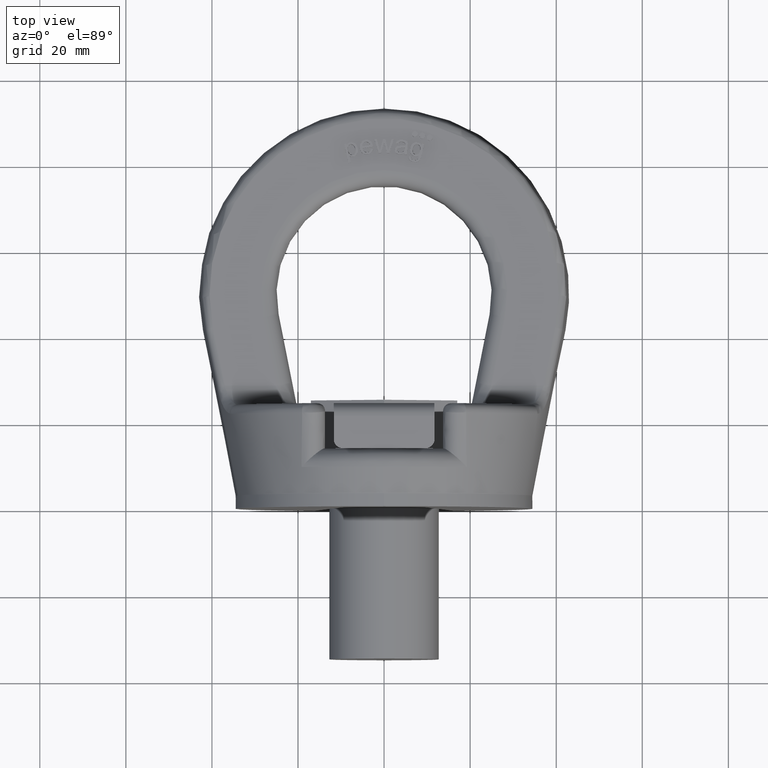
[diagram: clean part render]
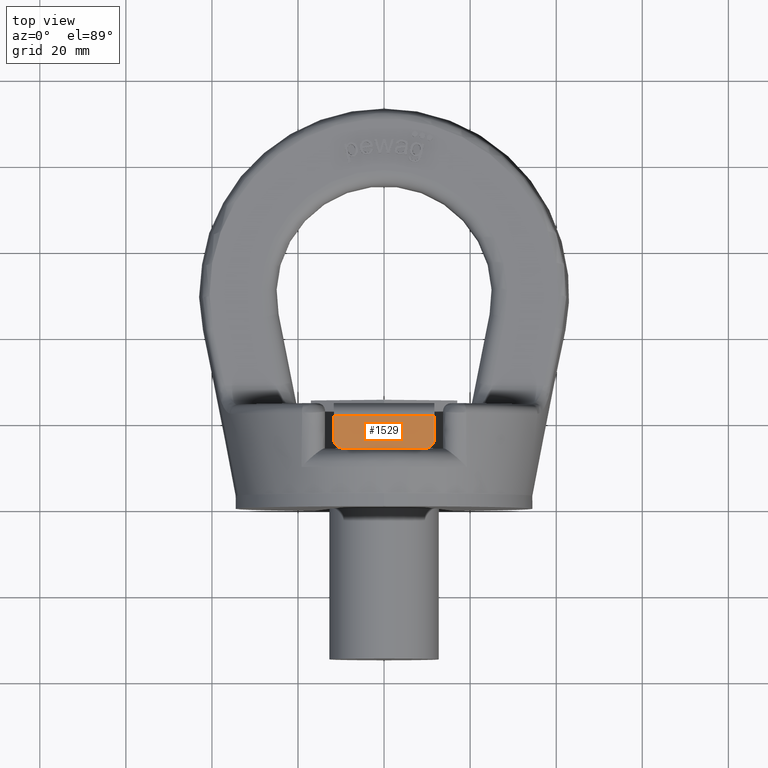
[diagram: same view with one face highlighted and labeled with its STEP entity id]
A machine part, top view. The second image highlights one B-rep face of the part: STEP entity #1529.
In plain terms, the highlighted planar face has unit normal (0, 0, -1).
Its self-contained STEP definition (entity closure, byte-faithful):
#1290=FACE_OUTER_BOUND('',#2067,.T.);
#1529=ADVANCED_FACE('',(#1290),#1657,.F.);
#1657=PLANE('',#5351);
#1742=CIRCLE('',#5349,2.);
#1743=CIRCLE('',#5350,2.);
#2067=EDGE_LOOP('',(#3784,#3785,#3786,#3787,#3788,#3789));
#2318=LINE('',#9540,#2654);
#2326=LINE('',#9562,#2662);
#2330=LINE('',#9571,#2666);
#2341=LINE('',#9605,#2677);
#2654=VECTOR('',#6098,1.);
#2662=VECTOR('',#6112,1.);
#2666=VECTOR('',#6118,1.);
#2677=VECTOR('',#6157,1.);
#3784=ORIENTED_EDGE('',*,*,#4792,.F.);
#3785=ORIENTED_EDGE('',*,*,#4816,.T.);
#3786=ORIENTED_EDGE('',*,*,#4782,.F.);
#3787=ORIENTED_EDGE('',*,*,#4815,.T.);
#3788=ORIENTED_EDGE('',*,*,#4796,.T.);
#3789=ORIENTED_EDGE('',*,*,#4817,.T.);
#4218=VERTEX_POINT('',#9541);
#4219=VERTEX_POINT('',#9542);
#4228=VERTEX_POINT('',#9561);
#4229=VERTEX_POINT('',#9563);
#4232=VERTEX_POINT('',#9570);
#4233=VERTEX_POINT('',#9572);
#4782=EDGE_CURVE('',#4218,#4219,#2318,.T.);
#4792=EDGE_CURVE('',#4228,#4229,#2326,.T.);
#4796=EDGE_CURVE('',#4233,#4232,#2330,.T.);
#4815=EDGE_CURVE('',#4218,#4233,#2341,.T.);
#4816=EDGE_CURVE('',#4228,#4219,#1742,.T.);
#4817=EDGE_CURVE('',#4232,#4229,#1743,.T.);
#5349=AXIS2_PLACEMENT_3D('',#9607,#6160,#6161);
#5350=AXIS2_PLACEMENT_3D('',#9608,#6162,#6163);
#5351=AXIS2_PLACEMENT_3D('',#9609,#6164,#6165);
#6098=DIRECTION('',(0.,-1.,0.));
#6112=DIRECTION('',(-1.,0.,0.));
#6118=DIRECTION('',(0.,-1.,0.));
#6157=DIRECTION('',(-1.,0.,0.));
#6160=DIRECTION('',(0.,0.,1.));
#6161=DIRECTION('',(-1.,0.,0.));
#6162=DIRECTION('',(0.,0.,1.));
#6163=DIRECTION('',(-1.,0.,0.));
#6164=DIRECTION('',(0.,0.,-1.));
#6165=DIRECTION('',(-1.,0.,0.));
#9540=CARTESIAN_POINT('',(11.7,21.,34.5));
#9541=CARTESIAN_POINT('',(11.7,21.,34.5));
#9542=CARTESIAN_POINT('',(11.7,15.5,34.5));
#9561=CARTESIAN_POINT('',(9.7,13.5,34.5));
#9562=CARTESIAN_POINT('',(11.7,13.5,34.5));
#9563=CARTESIAN_POINT('',(-9.7,13.5,34.5));
#9570=CARTESIAN_POINT('',(-11.7,15.5,34.5));
#9571=CARTESIAN_POINT('',(-11.7,21.,34.5));
#9572=CARTESIAN_POINT('',(-11.7,21.,34.5));
#9605=CARTESIAN_POINT('',(11.7,21.,34.5));
#9607=CARTESIAN_POINT('',(9.7,15.5,34.5));
#9608=CARTESIAN_POINT('',(-9.7,15.5,34.5));
#9609=CARTESIAN_POINT('',(11.7,21.,34.5));